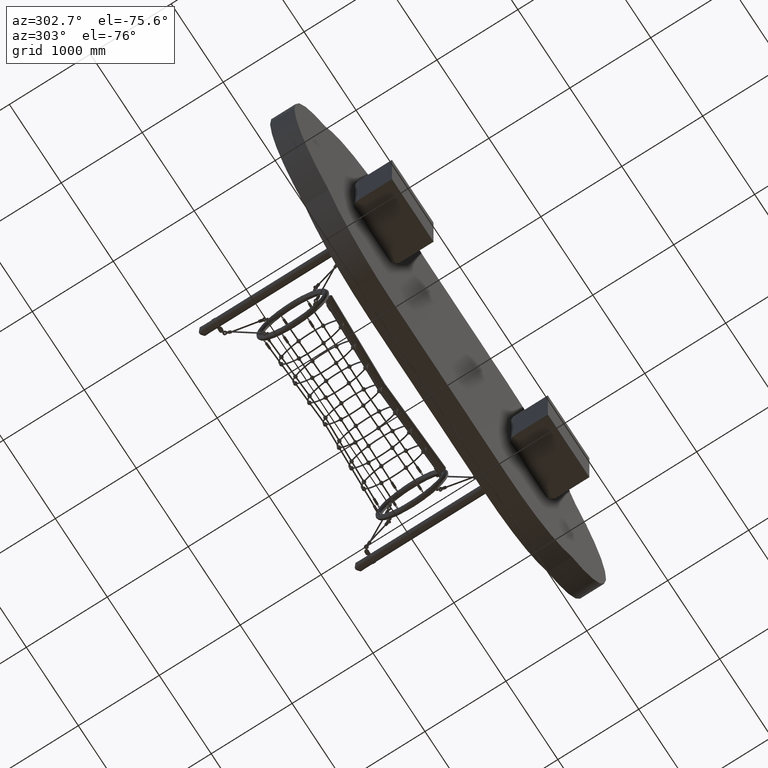
[diagram: clean part render]
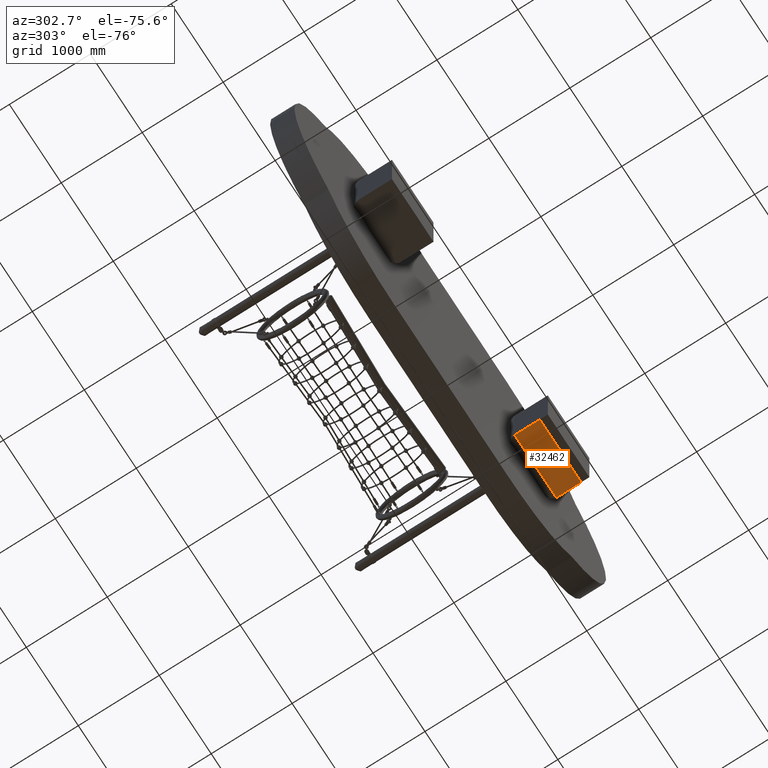
[diagram: same view with one face highlighted and labeled with its STEP entity id]
A machine part, auxiliary view. The second image highlights one B-rep face of the part: STEP entity #32462.
In plain terms, the highlighted planar face has unit normal (0, 0, -1).
Its self-contained STEP definition (entity closure, byte-faithful):
#128 = CARTESIAN_POINT ( 'NONE',  ( 0.8000000000000000400, 0.4085786437626903200, 6.938893903907228400E-017 ) ) ;
#578 = DIRECTION ( 'NONE',  ( -2.220446049250314100E-016, 1.000000000000000000, 0.0000000000000000000 ) ) ;
#610 = CARTESIAN_POINT ( 'NONE',  ( 0.8000000000000000400, 0.09999999999999992200, 0.0000000000000000000 ) ) ;
#735 = DIRECTION ( 'NONE',  ( 0.0000000000000000000, 1.000000000000000000, 0.0000000000000000000 ) ) ;
#737 = CARTESIAN_POINT ( 'NONE',  ( 0.0000000000000000000, 0.5999999999999998700, 0.0000000000000000000 ) ) ;
#841 = CARTESIAN_POINT ( 'NONE',  ( 0.0000000000000000000, 0.09999999999999992200, 0.0000000000000000000 ) ) ;
#872 = LINE ( 'NONE', #841, #15468 ) ;
#907 = LINE ( 'NONE', #3723, #28523 ) ;
#3571 = DIRECTION ( 'NONE',  ( 1.000000000000000000, -0.0000000000000000000, 0.0000000000000000000 ) ) ;
#3723 = CARTESIAN_POINT ( 'NONE',  ( -9.184850993605148400E-017, 0.4085786437626903200, 0.0000000000000000000 ) ) ;
#4306 = LINE ( 'NONE', #610, #17952 ) ;
#5187 = LINE ( 'NONE', #737, #25719 ) ;
#7578 = AXIS2_PLACEMENT_3D ( 'NONE', #30546, #14996, #33090 ) ;
#9610 = EDGE_CURVE ( 'NONE', #17679, #19185, #907, .T. ) ;
#9770 = EDGE_CURVE ( 'NONE', #10530, #17679, #5187, .T. ) ;
#9779 = EDGE_CURVE ( 'NONE', #18340, #19185, #4306, .T. ) ;
#9819 = EDGE_CURVE ( 'NONE', #10530, #18340, #872, .T. ) ;
#10530 = VERTEX_POINT ( 'NONE', #12747 ) ;
#10755 = ORIENTED_EDGE ( 'NONE', *, *, #9779, .F. ) ;
#12747 = CARTESIAN_POINT ( 'NONE',  ( 0.0000000000000000000, 0.09999999999999992200, 0.0000000000000000000 ) ) ;
#14996 = DIRECTION ( 'NONE',  ( 0.0000000000000000000, 0.0000000000000000000, -1.000000000000000000 ) ) ;
#15468 = VECTOR ( 'NONE', #31233, 1.000000000000000000 ) ;
#17679 = VERTEX_POINT ( 'NONE', #18077 ) ;
#17952 = VECTOR ( 'NONE', #578, 1.000000000000000000 ) ;
#18077 = CARTESIAN_POINT ( 'NONE',  ( -2.081668171172168500E-017, 0.4085786437626902600, 6.938893903907228400E-018 ) ) ;
#18340 = VERTEX_POINT ( 'NONE', #32846 ) ;
#19185 = VERTEX_POINT ( 'NONE', #128 ) ;
#19699 = ORIENTED_EDGE ( 'NONE', *, *, #9610, .T. ) ;
#20241 = PLANE ( 'NONE',  #7578 ) ;
#22777 = EDGE_LOOP ( 'NONE', ( #10755, #29371, #27390, #19699 ) ) ;
#25719 = VECTOR ( 'NONE', #735, 1.000000000000000000 ) ;
#26511 = FACE_OUTER_BOUND ( 'NONE', #22777, .T. ) ;
#27390 = ORIENTED_EDGE ( 'NONE', *, *, #9770, .T. ) ;
#28523 = VECTOR ( 'NONE', #3571, 1.000000000000000000 ) ;
#29371 = ORIENTED_EDGE ( 'NONE', *, *, #9819, .F. ) ;
#30546 = CARTESIAN_POINT ( 'NONE',  ( -9.184850993605148400E-017, 0.5999999999999998700, 0.0000000000000000000 ) ) ;
#31233 = DIRECTION ( 'NONE',  ( 1.000000000000000000, 0.0000000000000000000, 0.0000000000000000000 ) ) ;
#32462 = ADVANCED_FACE ( 'NONE', ( #26511 ), #20241, .T. ) ;
#32846 = CARTESIAN_POINT ( 'NONE',  ( 0.8000000000000000400, 0.09999999999999992200, 0.0000000000000000000 ) ) ;
#33090 = DIRECTION ( 'NONE',  ( -1.000000000000000000, 0.0000000000000000000, -0.0000000000000000000 ) ) ;